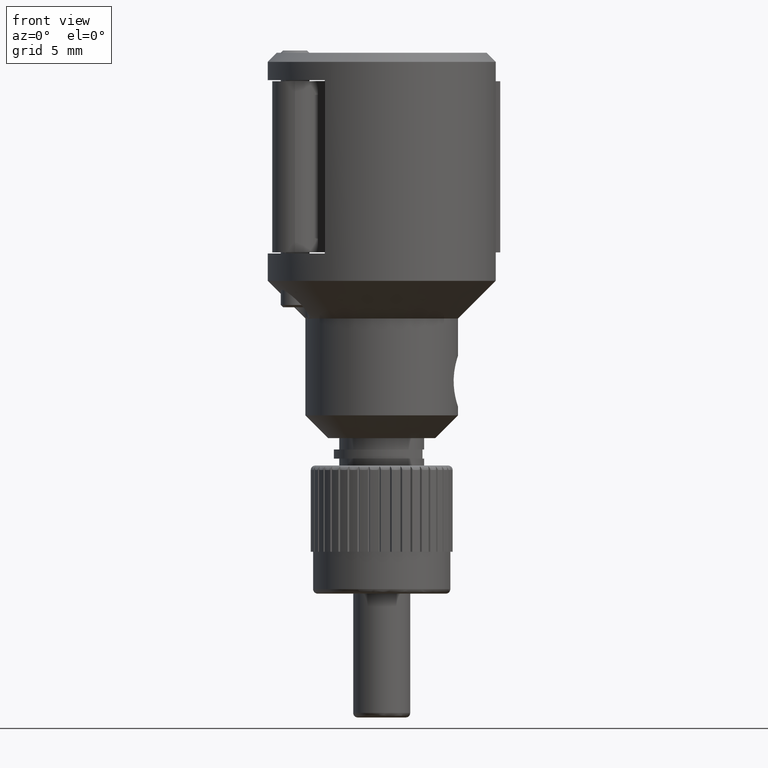
[diagram: clean part render]
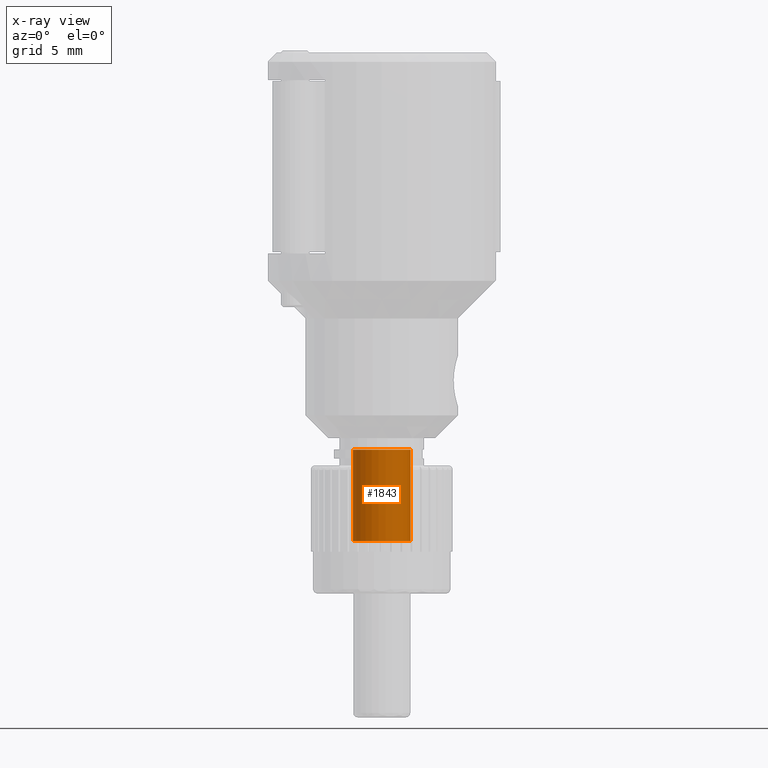
[diagram: x-ray — body ghosted, one internal face saturated and labeled with its STEP entity id]
A machine part, front view, then the same camera in x-ray: the body is ghosted and one INTERNAL B-rep face — a face not visible from any outside direction — is saturated and labeled: STEP entity #1843.
In plain terms, the highlighted cylindrical surface (edge-blend (fillet) strip) has radius 1.6002 mm, axis along (0, -0, 1).
Its self-contained STEP definition (entity closure, byte-faithful):
#282 = VECTOR ( 'NONE', #4609, 39.37007874015748100 ) ;
#849 = CIRCLE ( 'NONE', #8436, 0.06300000000000001400 ) ;
#1047 = CARTESIAN_POINT ( 'NONE',  ( 0.06299704564073879700, 0.0006101151848991988700, -0.3185000000000004500 ) ) ;
#1253 = LINE ( 'NONE', #1629, #282 ) ;
#1264 = DIRECTION ( 'NONE',  ( 1.183291357831517700E-030, -3.851859888774471700E-032, 1.000000000000000000 ) ) ;
#1552 = VERTEX_POINT ( 'NONE', #2252 ) ;
#1629 = CARTESIAN_POINT ( 'NONE',  ( -0.06299704564073606300, -0.0006101151849013765900, -0.3185000000000004500 ) ) ;
#1843 = ADVANCED_FACE ( 'NONE', ( #5465 ), #4266, .F. ) ;
#1935 = VERTEX_POINT ( 'NONE', #1047 ) ;
#2017 = EDGE_LOOP ( 'NONE', ( #5876, #7194, #5736, #5852 ) ) ;
#2252 = CARTESIAN_POINT ( 'NONE',  ( 0.06299704564073879700, 0.0006101151848991988700, -0.1185000000000003800 ) ) ;
#2504 = VERTEX_POINT ( 'NONE', #7110 ) ;
#2515 = VERTEX_POINT ( 'NONE', #2623 ) ;
#2623 = CARTESIAN_POINT ( 'NONE',  ( -0.06299704564073606300, -0.0006101151849013764900, -0.3185000000000004500 ) ) ;
#2683 = AXIS2_PLACEMENT_3D ( 'NONE', #9753, #7560, #2959 ) ;
#2761 = EDGE_CURVE ( 'NONE', #1552, #2504, #849, .T. ) ;
#2959 = DIRECTION ( 'NONE',  ( 0.9999531054085305500, 0.009684368014290340200, 0.0000000000000000000 ) ) ;
#3161 = VECTOR ( 'NONE', #1264, 39.37007874015748100 ) ;
#3566 = CARTESIAN_POINT ( 'NONE',  ( 1.365923996832131600E-015, -1.092739197465705300E-015, -0.1185000000000003800 ) ) ;
#3633 = DIRECTION ( 'NONE',  ( -1.183291357831517700E-030, 3.851859888774471700E-032, -1.000000000000000000 ) ) ;
#4266 = CYLINDRICAL_SURFACE ( 'NONE', #2683, 0.06300000000000001400 ) ;
#4609 = DIRECTION ( 'NONE',  ( 1.183291357831517700E-030, -3.851859888774471700E-032, 1.000000000000000000 ) ) ;
#4932 = DIRECTION ( 'NONE',  ( 0.9999531054085305500, 0.009684368014290340200, 0.0000000000000000000 ) ) ;
#5188 = LINE ( 'NONE', #8367, #3161 ) ;
#5465 = FACE_OUTER_BOUND ( 'NONE', #2017, .T. ) ;
#5736 = ORIENTED_EDGE ( 'NONE', *, *, #2761, .F. ) ;
#5852 = ORIENTED_EDGE ( 'NONE', *, *, #6306, .F. ) ;
#5876 = ORIENTED_EDGE ( 'NONE', *, *, #9847, .T. ) ;
#6306 = EDGE_CURVE ( 'NONE', #1935, #1552, #5188, .T. ) ;
#6556 = CARTESIAN_POINT ( 'NONE',  ( 1.365923996832131600E-015, -1.092739197465705300E-015, -0.3185000000000004500 ) ) ;
#7110 = CARTESIAN_POINT ( 'NONE',  ( -0.06299704564073606300, -0.0006101151849013764900, -0.1185000000000003800 ) ) ;
#7191 = EDGE_CURVE ( 'NONE', #2515, #2504, #1253, .T. ) ;
#7194 = ORIENTED_EDGE ( 'NONE', *, *, #7191, .T. ) ;
#7405 = DIRECTION ( 'NONE',  ( 0.9999531054085305500, 0.009684368014290340200, 0.0000000000000000000 ) ) ;
#7560 = DIRECTION ( 'NONE',  ( 1.183291357831517700E-030, -3.851859888774471700E-032, 1.000000000000000000 ) ) ;
#8066 = DIRECTION ( 'NONE',  ( -1.183291357831517700E-030, 3.851859888774471700E-032, -1.000000000000000000 ) ) ;
#8367 = CARTESIAN_POINT ( 'NONE',  ( 0.06299704564073879700, 0.0006101151848991988700, -0.3185000000000004500 ) ) ;
#8436 = AXIS2_PLACEMENT_3D ( 'NONE', #3566, #3633, #7405 ) ;
#9010 = AXIS2_PLACEMENT_3D ( 'NONE', #6556, #8066, #4932 ) ;
#9239 = CIRCLE ( 'NONE', #9010, 0.06300000000000001400 ) ;
#9753 = CARTESIAN_POINT ( 'NONE',  ( 1.365923996832131600E-015, -1.092739197465705300E-015, -0.3185000000000004500 ) ) ;
#9847 = EDGE_CURVE ( 'NONE', #1935, #2515, #9239, .T. ) ;